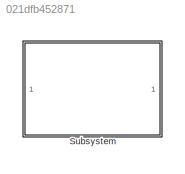
MODEL slx_021dfb452871
KIND library
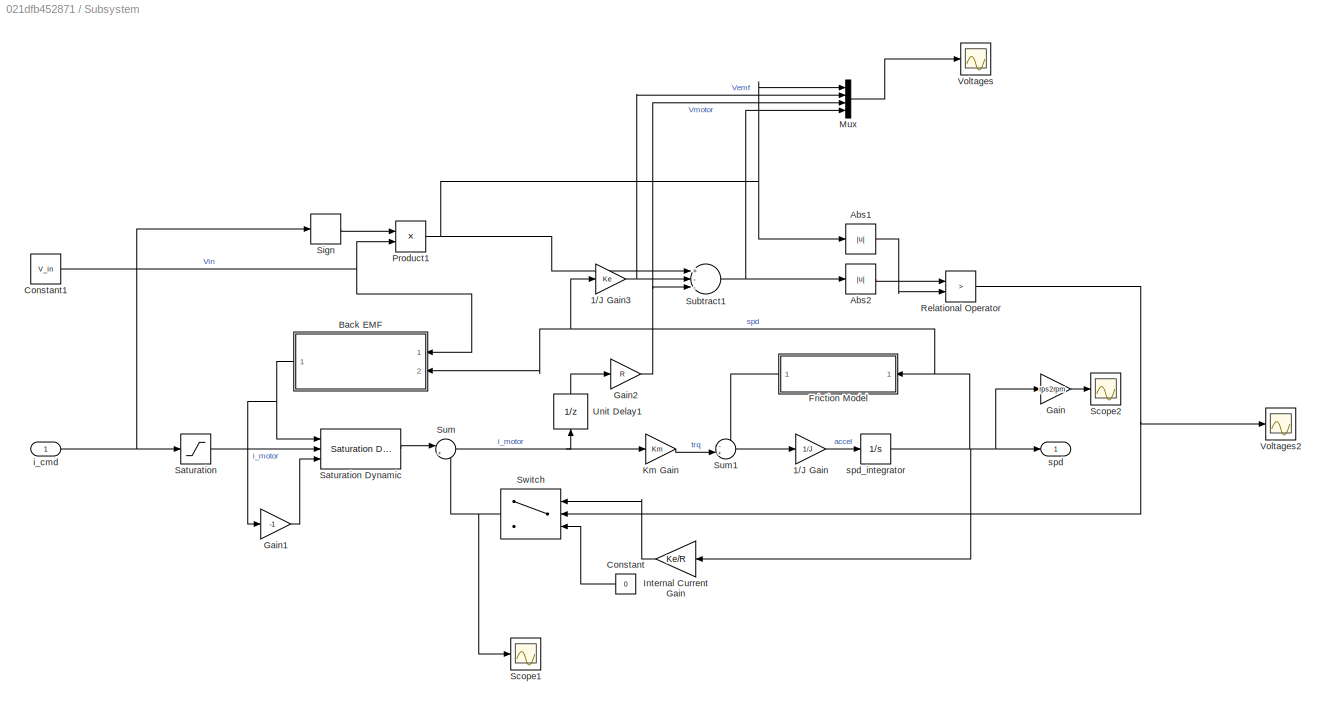
BLOCK [SubSystem] Subsystem
  Ports = [1, 1]
  RequestExecContextInheritance = off
BLOCK [Gain] Subsystem/1//J Gain
  Gain = 1/J
  OutDataTypeStr = Inherit: Inherit via internal rule
  ParamDataTypeStr = Inherit: Inherit via internal rule
  SaturateOnIntegerOverflow = off
BLOCK [Gain] Subsystem/1//J Gain3
  Gain = Ke
  OutDataTypeStr = Inherit: Inherit via internal rule
  ParamDataTypeStr = Inherit: Inherit via internal rule
  SaturateOnIntegerOverflow = off
BLOCK [Abs] Subsystem/Abs1
  SaturateOnIntegerOverflow = off
BLOCK [Abs] Subsystem/Abs2
  SaturateOnIntegerOverflow = off
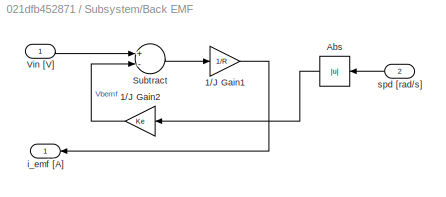
BLOCK [SubSystem] Subsystem/Back EMF
  Ports = [2, 1]
  RequestExecContextInheritance = off
BLOCK [Gain] Subsystem/Back EMF/1//J Gain1
  Gain = 1/R
  OutDataTypeStr = Inherit: Inherit via internal rule
  ParamDataTypeStr = Inherit: Inherit via internal rule
  SaturateOnIntegerOverflow = off
BLOCK [Gain] Subsystem/Back EMF/1//J Gain2
  Gain = Ke
  OutDataTypeStr = Inherit: Inherit via internal rule
  ParamDataTypeStr = Inherit: Inherit via internal rule
  SaturateOnIntegerOverflow = off
BLOCK [Abs] Subsystem/Back EMF/Abs
  SaturateOnIntegerOverflow = off
BLOCK [Sum] Subsystem/Back EMF/Subtract
  InputSameDT = off
  Inputs = +-
  OutDataTypeStr = Inherit: Inherit via internal rule
  Ports = [2, 1]
  SaturateOnIntegerOverflow = off
BLOCK [Inport] Subsystem/Back EMF/Vin [V]
  IconDisplay = Port number
BLOCK [Outport] Subsystem/Back EMF/i_emf [A]
  IconDisplay = Port number
BLOCK [Inport] Subsystem/Back EMF/spd [rad//s]
  IconDisplay = Port number
  Port = 2
BLOCK [Constant] Subsystem/Constant
  Value = 0
BLOCK [Constant] Subsystem/Constant1
  Value = V_in
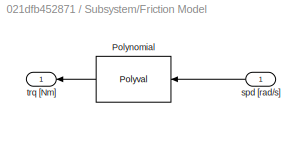
BLOCK [SubSystem] Subsystem/Friction Model
  Ports = [1, 1]
  RequestExecContextInheritance = off
BLOCK [Polyval] Subsystem/Friction Model/Polynomial
  Coefs = f_abc
BLOCK [Inport] Subsystem/Friction Model/spd [rad//s]
  IconDisplay = Port number
BLOCK [Outport] Subsystem/Friction Model/trq [Nm]
  IconDisplay = Port number
BLOCK [Gain] Subsystem/Gain
  Gain = rps2rpm
  OutDataTypeStr = Inherit: Inherit via internal rule
  ParamDataTypeStr = Inherit: Inherit via internal rule
  SaturateOnIntegerOverflow = off
BLOCK [Gain] Subsystem/Gain1
  Gain = -1
  OutDataTypeStr = Inherit: Inherit via internal rule
  ParamDataTypeStr = Inherit: Inherit via internal rule
  SaturateOnIntegerOverflow = off
BLOCK [Gain] Subsystem/Gain2
  Gain = R
  OutDataTypeStr = Inherit: Inherit via internal rule
  ParamDataTypeStr = Inherit: Inherit via internal rule
  SaturateOnIntegerOverflow = off
BLOCK [Gain] Subsystem/Internal Current Gain
  Gain = Ke/R
  OutDataTypeStr = Inherit: Inherit via internal rule
  ParamDataTypeStr = Inherit: Inherit via internal rule
  SaturateOnIntegerOverflow = off
BLOCK [Gain] Subsystem/Km Gain
  Gain = Km
  OutDataTypeStr = Inherit: Inherit via internal rule
  ParamDataTypeStr = Inherit: Inherit via internal rule
  SaturateOnIntegerOverflow = off
BLOCK [Mux] Subsystem/Mux
  DisplayOption = bar
  Ports = [4, 1]
BLOCK [Product] Subsystem/Product1
  InputSameDT = off
  OutDataTypeStr = Inherit: Inherit via internal rule
  Ports = [2, 1]
  RndMeth = Floor
  SaturateOnIntegerOverflow = off
BLOCK [RelationalOperator] Subsystem/Relational Operator
  InputSameDT = off
  Operator = >
  OutDataTypeStr = boolean
  Ports = [2, 1]
BLOCK [Saturate] Subsystem/Saturation
  InputPortMap = u0
  LowerLimit = -i_max
  Ports = [1, 1]
  UpperLimit = i_max
BLOCK [Reference] Subsystem/Saturation Dynamic  REF=simulink/Discontinuities/Saturation
Dynamic
  DoSatur = off
  LockScale = off
  OutDataType = fixdt(1, 16)
  OutDataTypeStr = Inherit: Same as second input
  OutMax = []
  OutMin = []
  OutScaling = 2^-10
  OutputDataTypeScalingMode = Same as second input
  Ports = [3, 1]
  RndMeth = Floor
  SourceBlock = simulink/Discontinuities/Saturation\nDynamic
  SourceType = Saturation Dynamic
BLOCK [Scope] Subsystem/Scope1
  Floating = off
  LimitDataPoints = off
  NumInputPorts = 1
  Ports = [1]
  SaveName = ScopeData1
  ShowLegends = off
  TimeRange = 12.402
  YMax = -0.8999999999999999
  YMin = -1.5
BLOCK [Scope] Subsystem/Scope2
  Floating = off
  LimitDataPoints = off
  NumInputPorts = 1
  Ports = [1]
  SaveName = ScopeData3
  ShowLegends = off
BLOCK [Signum] Subsystem/Sign
BLOCK [Sum] Subsystem/Subtract1
  InputSameDT = off
  Inputs = +--
  OutDataTypeStr = Inherit: Inherit via internal rule
  Ports = [3, 1]
  SaturateOnIntegerOverflow = off
BLOCK [Sum] Subsystem/Sum
  IconShape = round
  InputSameDT = off
  Inputs = |+-
  OutDataTypeStr = Inherit: Inherit via internal rule
  Ports = [2, 1]
  SaturateOnIntegerOverflow = off
BLOCK [Sum] Subsystem/Sum1
  IconShape = round
  InputSameDT = off
  Inputs = -+|
  OutDataTypeStr = Inherit: Inherit via internal rule
  Ports = [2, 1]
  SaturateOnIntegerOverflow = off
BLOCK [Switch] Subsystem/Switch
  InputSameDT = off
  SaturateOnIntegerOverflow = off
BLOCK [UnitDelay] Subsystem/Unit Delay1
  InputProcessing = Elements as channels (sample based)
  SampleTime = -1
BLOCK [Scope] Subsystem/Voltages
  Floating = off
  LimitDataPoints = off
  NumInputPorts = 1
  Ports = [1]
  SaveName = ScopeData4
  ShowLegends = on
  TimeRange = 30
  YMax = 0
  YMin = -25
BLOCK [Scope] Subsystem/Voltages2
  Floating = off
  LimitDataPoints = off
  NumInputPorts = 1
  Ports = [1]
  SaveName = ScopeData5
  ShowLegends = on
  TimeRange = 30
  YMax = 15
  YMin = -10
BLOCK [Inport] Subsystem/i_cmd
  IconDisplay = Port number
BLOCK [Outport] Subsystem/spd
  IconDisplay = Port number
BLOCK [Integrator] Subsystem/spd_integrator
  InitialCondition = spd_0
  Ports = [1, 1]
NET Subsystem/1//J Gain3:1 -> Subsystem/Mux:2, Subsystem/Subtract1:2
LINE Subsystem/1//J Gain:1 -> Subsystem/spd_integrator:1
LINE Subsystem/Abs1:1 -> Subsystem/Relational Operator:2
LINE Subsystem/Abs2:1 -> Subsystem/Relational Operator:1
LINE Subsystem/Back EMF/1//J Gain1:1 -> Subsystem/Back EMF/i_emf [A]:1
LINE Subsystem/Back EMF/1//J Gain2:1 -> Subsystem/Back EMF/Subtract:2
LINE Subsystem/Back EMF/Abs:1 -> Subsystem/Back EMF/1//J Gain2:1
LINE Subsystem/Back EMF/Subtract:1 -> Subsystem/Back EMF/1//J Gain1:1
LINE Subsystem/Back EMF/Vin [V]:1 -> Subsystem/Back EMF/Subtract:1
LINE Subsystem/Back EMF/spd [rad//s]:1 -> Subsystem/Back EMF/Abs:1
NET Subsystem/Back EMF:1 -> Subsystem/Gain1:1, Subsystem/Saturation Dynamic:1
NET Subsystem/Constant1:1 -> Subsystem/Back EMF:1, Subsystem/Product1:2
LINE Subsystem/Constant:1 -> Subsystem/Switch:3
LINE Subsystem/Friction Model/Polynomial:1 -> Subsystem/Friction Model/trq [Nm]:1
LINE Subsystem/Friction Model/spd [rad//s]:1 -> Subsystem/Friction Model/Polynomial:1
LINE Subsystem/Friction Model:1 -> Subsystem/Sum1:1
LINE Subsystem/Gain1:1 -> Subsystem/Saturation Dynamic:3
NET Subsystem/Gain2:1 -> Subsystem/Mux:3, Subsystem/Subtract1:3
LINE Subsystem/Gain:1 -> Subsystem/Scope2:1
LINE Subsystem/Internal Current Gain:1 -> Subsystem/Switch:1
LINE Subsystem/Km Gain:1 -> Subsystem/Sum1:2
LINE Subsystem/Mux:1 -> Subsystem/Voltages:1
NET Subsystem/Product1:1 -> Subsystem/Abs1:1, Subsystem/Mux:1, Subsystem/Subtract1:1
NET Subsystem/Relational Operator:1 -> Subsystem/Switch:2, Subsystem/Voltages2:1
LINE Subsystem/Saturation Dynamic:1 -> Subsystem/Sum:1
LINE Subsystem/Saturation:1 -> Subsystem/Saturation Dynamic:2
LINE Subsystem/Sign:1 -> Subsystem/Product1:1
NET Subsystem/Subtract1:1 -> Subsystem/Abs2:1, Subsystem/Mux:4
LINE Subsystem/Sum1:1 -> Subsystem/1//J Gain:1
NET Subsystem/Sum:1 -> Subsystem/Km Gain:1, Subsystem/Unit Delay1:1
NET Subsystem/Switch:1 -> Subsystem/Scope1:1, Subsystem/Sum:2
LINE Subsystem/Unit Delay1:1 -> Subsystem/Gain2:1
NET Subsystem/i_cmd:1 -> Subsystem/Saturation:1, Subsystem/Sign:1
NET Subsystem/spd_integrator:1 -> Subsystem/1//J Gain3:1, Subsystem/Back EMF:2, Subsystem/Friction Model:1, Subsystem/Gain:1, Subsystem/Internal Current Gain:1, Subsystem/spd:1
note: NET lines group one-source signal fan-out (src -> all destinations, sorted); 1:1 wires keep LINE
